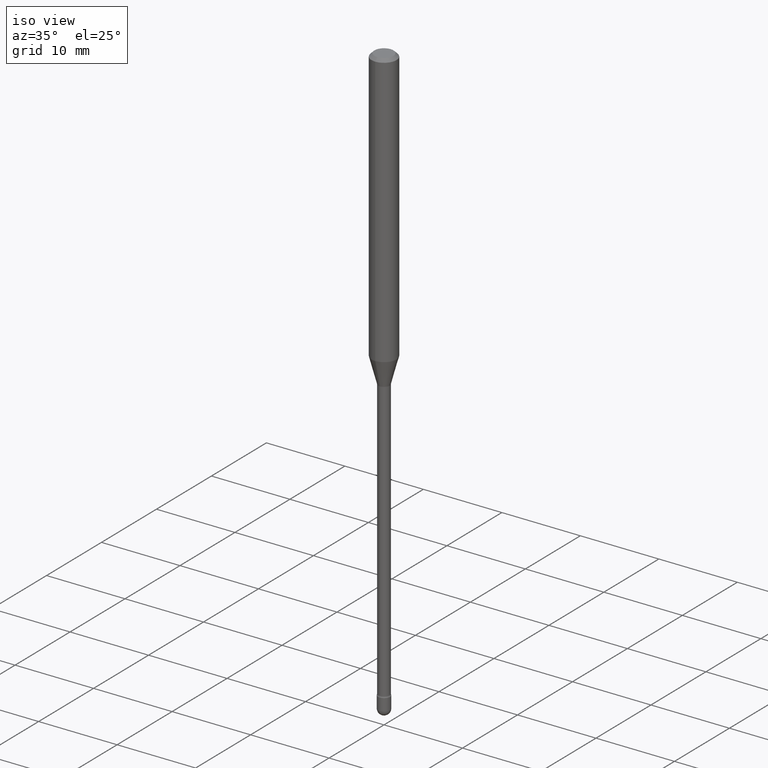
[diagram: clean part render]
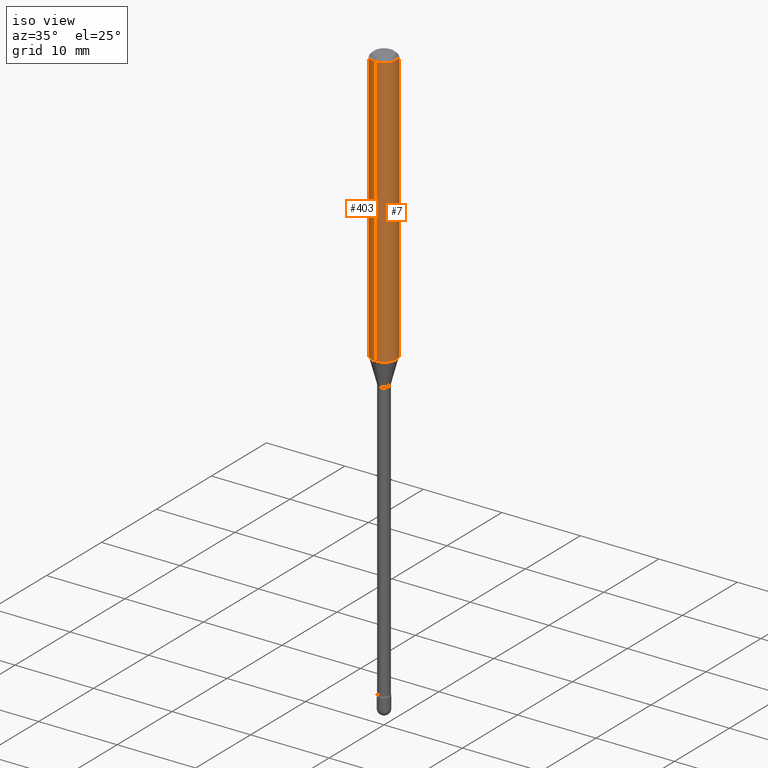
[diagram: same view with one multi-face feature highlighted, each face labeled with its STEP entity id]
A machine part, iso view. The highlighted faces form ONE feature: a constant-radius fillet chain: 2 tangent blend faces with common blend radius 1.5875 mm. The faces share edges in the B-rep.
Their STEP definitions:
[1] entity #403 (Cylinder):
#4 = CARTESIAN_POINT ( 'NONE',  ( 4.440892098500625669E-16, 0.06250000000000000000, 2.598563451626412411E-16 ) ) ;
#34 = AXIS2_PLACEMENT_3D ( 'NONE', #226, #274, #405 ) ;
#43 = ORIENTED_EDGE ( 'NONE', *, *, #413, .F. ) ;
#50 = ORIENTED_EDGE ( 'NONE', *, *, #350, .F. ) ;
#72 = DIRECTION ( 'NONE',  ( -2.445474727168702931E-29, 3.491472859657677154E-15, 1.000000000000000000 ) ) ;
#144 = DIRECTION ( 'NONE',  ( -2.445474727168702931E-29, 3.491472859657677154E-15, 1.000000000000000000 ) ) ;
#182 = LINE ( 'NONE', #4, #185 ) ;
#185 = VECTOR ( 'NONE', #266, 39.37007874015748143 ) ;
#190 = CARTESIAN_POINT ( 'NONE',  ( -1.169113584055446105E-44, 1.669184350826100908E-30, 4.780733988912460139E-16 ) ) ;
#191 = ORIENTED_EDGE ( 'NONE', *, *, #345, .T. ) ;
#192 = EDGE_CURVE ( 'NONE', #332, #234, #393, .T. ) ;
#199 = DIRECTION ( 'NONE',  ( -2.445474727168702931E-29, 3.491472859657677154E-15, 1.000000000000000000 ) ) ;
#226 = CARTESIAN_POINT ( 'NONE',  ( 3.355168478339675367E-29, -4.790268143668202396E-15, -1.371990657300387939 ) ) ;
#234 = VERTEX_POINT ( 'NONE', #474 ) ;
#256 = AXIS2_PLACEMENT_3D ( 'NONE', #190, #199, #380 ) ;
#262 = CARTESIAN_POINT ( 'NONE',  ( -4.364351673553916201E-16, -0.06250000000000000000, 6.962904526198508854E-16 ) ) ;
#266 = DIRECTION ( 'NONE',  ( -2.445474727168702931E-29, 3.491472859657677154E-15, 1.000000000000000000 ) ) ;
#274 = DIRECTION ( 'NONE',  ( -2.445474727168702931E-29, 3.491472859657677154E-15, 1.000000000000000000 ) ) ;
#277 = CARTESIAN_POINT ( 'NONE',  ( 4.440892098500958469E-16, 0.06249999999999517747, -1.371990657300388161 ) ) ;
#278 = EDGE_LOOP ( 'NONE', ( #50, #191, #281, #43 ) ) ;
#281 = ORIENTED_EDGE ( 'NONE', *, *, #192, .T. ) ;
#289 = FACE_OUTER_BOUND ( 'NONE', #278, .T. ) ;
#296 = AXIS2_PLACEMENT_3D ( 'NONE', #534, #144, #411 ) ;
#332 = VERTEX_POINT ( 'NONE', #485 ) ;
#345 = EDGE_CURVE ( 'NONE', #451, #332, #479, .T. ) ;
#350 = EDGE_CURVE ( 'NONE', #451, #423, #182, .T. ) ;
#377 = CYLINDRICAL_SURFACE ( 'NONE', #256, 0.06250000000000000000 ) ;
#380 = DIRECTION ( 'NONE',  ( -6.982962677686265922E-15, -1.000000000000000000, 3.491472859657677548E-15 ) ) ;
#393 = LINE ( 'NONE', #262, #520 ) ;
#403 = ADVANCED_FACE ( 'NONE', ( #289 ), #377, .T. ) ;
#405 = DIRECTION ( 'NONE',  ( -6.982962677686265922E-15, -1.000000000000000000, 4.370956789862821150E-15 ) ) ;
#411 = DIRECTION ( 'NONE',  ( -6.982962677686265922E-15, -1.000000000000000000, 3.483106191921935554E-15 ) ) ;
#413 = EDGE_CURVE ( 'NONE', #423, #234, #566, .T. ) ;
#423 = VERTEX_POINT ( 'NONE', #544 ) ;
#451 = VERTEX_POINT ( 'NONE', #277 ) ;
#474 = CARTESIAN_POINT ( 'NONE',  ( -4.364351673553912750E-16, -0.06250000000000005551, -0.01499999999999986587 ) ) ;
#479 = CIRCLE ( 'NONE', #34, 0.06250000000000000000 ) ;
#485 = CARTESIAN_POINT ( 'NONE',  ( -4.364351673553582414E-16, -0.06250000000000481559, -1.371990657300387717 ) ) ;
#520 = VECTOR ( 'NONE', #72, 39.37007874015748143 ) ;
#534 = CARTESIAN_POINT ( 'NONE',  ( 3.668212090753074452E-31, -5.237209289486544796E-17, -0.01500000000000008271 ) ) ;
#544 = CARTESIAN_POINT ( 'NONE',  ( 4.440892098500963400E-16, 0.06249999999999995143, -0.01500000000000030129 ) ) ;
#566 = CIRCLE ( 'NONE', #296, 0.06250000000000000000 ) ;
[2] entity #7 (Cylinder):
#4 = CARTESIAN_POINT ( 'NONE',  ( 4.440892098500625669E-16, 0.06250000000000000000, 2.598563451626412411E-16 ) ) ;
#7 = ADVANCED_FACE ( 'NONE', ( #141 ), #537, .T. ) ;
#14 = AXIS2_PLACEMENT_3D ( 'NONE', #327, #98, #286 ) ;
#21 = CARTESIAN_POINT ( 'NONE',  ( 3.355168478339675367E-29, -4.790268143668202396E-15, -1.371990657300387939 ) ) ;
#68 = AXIS2_PLACEMENT_3D ( 'NONE', #322, #410, #148 ) ;
#71 = DIRECTION ( 'NONE',  ( -6.982962677686265922E-15, -1.000000000000000000, 4.370956789862821150E-15 ) ) ;
#72 = DIRECTION ( 'NONE',  ( -2.445474727168702931E-29, 3.491472859657677154E-15, 1.000000000000000000 ) ) ;
#98 = DIRECTION ( 'NONE',  ( -2.445474727168702931E-29, 3.491472859657677154E-15, 1.000000000000000000 ) ) ;
#141 = FACE_OUTER_BOUND ( 'NONE', #543, .T. ) ;
#148 = DIRECTION ( 'NONE',  ( -6.982962677686265922E-15, -1.000000000000000000, 3.483106191921935554E-15 ) ) ;
#160 = EDGE_CURVE ( 'NONE', #332, #451, #319, .T. ) ;
#179 = ORIENTED_EDGE ( 'NONE', *, *, #192, .F. ) ;
#182 = LINE ( 'NONE', #4, #185 ) ;
#185 = VECTOR ( 'NONE', #266, 39.37007874015748143 ) ;
#192 = EDGE_CURVE ( 'NONE', #332, #234, #393, .T. ) ;
#234 = VERTEX_POINT ( 'NONE', #474 ) ;
#246 = AXIS2_PLACEMENT_3D ( 'NONE', #21, #556, #71 ) ;
#262 = CARTESIAN_POINT ( 'NONE',  ( -4.364351673553916201E-16, -0.06250000000000000000, 6.962904526198508854E-16 ) ) ;
#266 = DIRECTION ( 'NONE',  ( -2.445474727168702931E-29, 3.491472859657677154E-15, 1.000000000000000000 ) ) ;
#277 = CARTESIAN_POINT ( 'NONE',  ( 4.440892098500958469E-16, 0.06249999999999517747, -1.371990657300388161 ) ) ;
#286 = DIRECTION ( 'NONE',  ( -6.982962677686265922E-15, -1.000000000000000000, 3.491472859657677548E-15 ) ) ;
#319 = CIRCLE ( 'NONE', #246, 0.06250000000000000000 ) ;
#322 = CARTESIAN_POINT ( 'NONE',  ( 3.668212090753074452E-31, -5.237209289486544796E-17, -0.01500000000000008271 ) ) ;
#327 = CARTESIAN_POINT ( 'NONE',  ( -1.169113584055446105E-44, 1.669184350826100908E-30, 4.780733988912460139E-16 ) ) ;
#332 = VERTEX_POINT ( 'NONE', #485 ) ;
#350 = EDGE_CURVE ( 'NONE', #451, #423, #182, .T. ) ;
#376 = ORIENTED_EDGE ( 'NONE', *, *, #160, .T. ) ;
#393 = LINE ( 'NONE', #262, #520 ) ;
#410 = DIRECTION ( 'NONE',  ( -2.445474727168702931E-29, 3.491472859657677154E-15, 1.000000000000000000 ) ) ;
#423 = VERTEX_POINT ( 'NONE', #544 ) ;
#431 = EDGE_CURVE ( 'NONE', #234, #423, #515, .T. ) ;
#451 = VERTEX_POINT ( 'NONE', #277 ) ;
#474 = CARTESIAN_POINT ( 'NONE',  ( -4.364351673553912750E-16, -0.06250000000000005551, -0.01499999999999986587 ) ) ;
#485 = CARTESIAN_POINT ( 'NONE',  ( -4.364351673553582414E-16, -0.06250000000000481559, -1.371990657300387717 ) ) ;
#488 = ORIENTED_EDGE ( 'NONE', *, *, #350, .T. ) ;
#515 = CIRCLE ( 'NONE', #68, 0.06250000000000000000 ) ;
#520 = VECTOR ( 'NONE', #72, 39.37007874015748143 ) ;
#533 = ORIENTED_EDGE ( 'NONE', *, *, #431, .F. ) ;
#537 = CYLINDRICAL_SURFACE ( 'NONE', #14, 0.06250000000000000000 ) ;
#543 = EDGE_LOOP ( 'NONE', ( #376, #488, #533, #179 ) ) ;
#544 = CARTESIAN_POINT ( 'NONE',  ( 4.440892098500963400E-16, 0.06249999999999995143, -0.01500000000000030129 ) ) ;
#556 = DIRECTION ( 'NONE',  ( -2.445474727168702931E-29, 3.491472859657677154E-15, 1.000000000000000000 ) ) ;